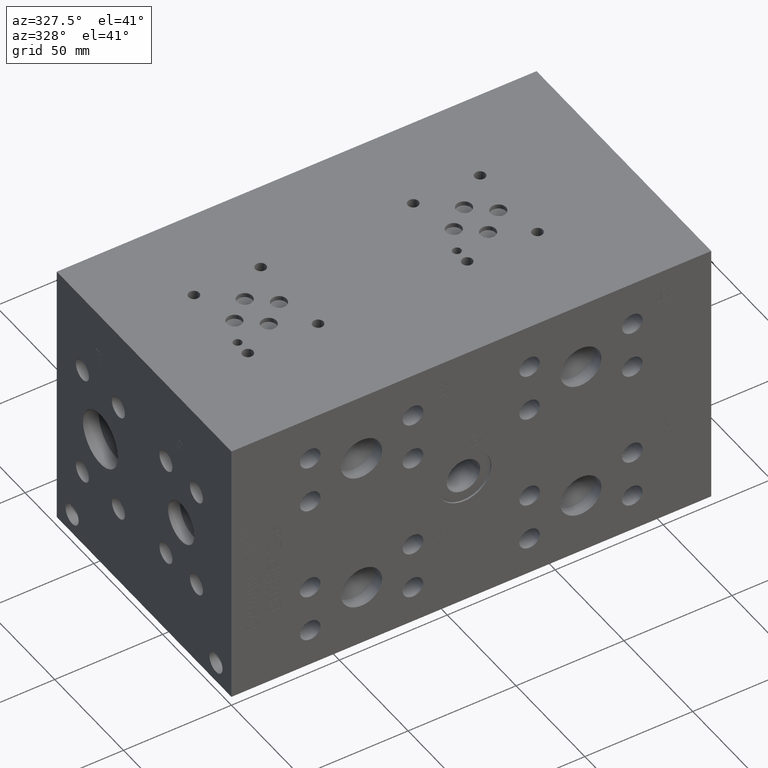
[diagram: clean part render]
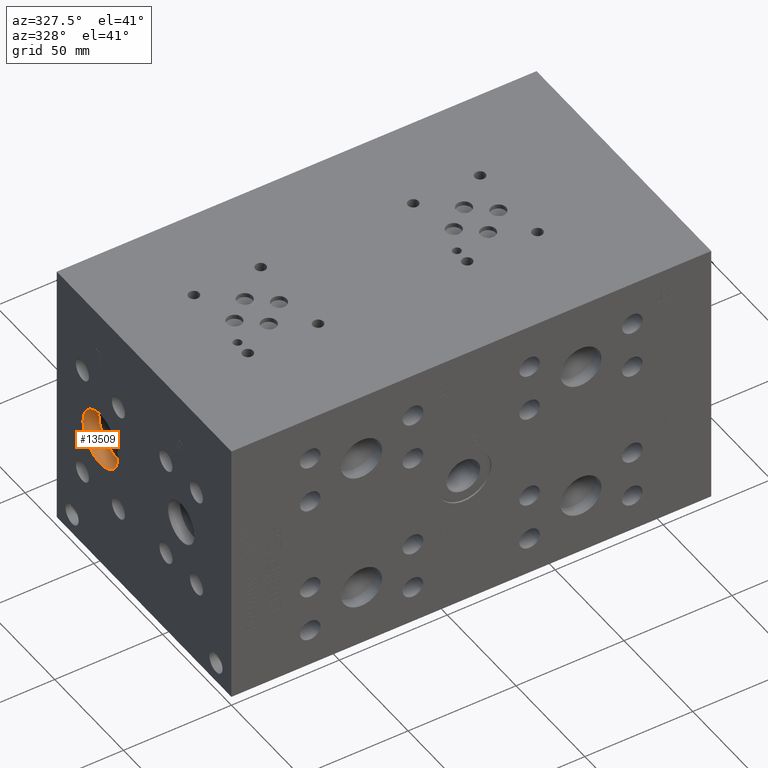
[diagram: same view with one face highlighted and labeled with its STEP entity id]
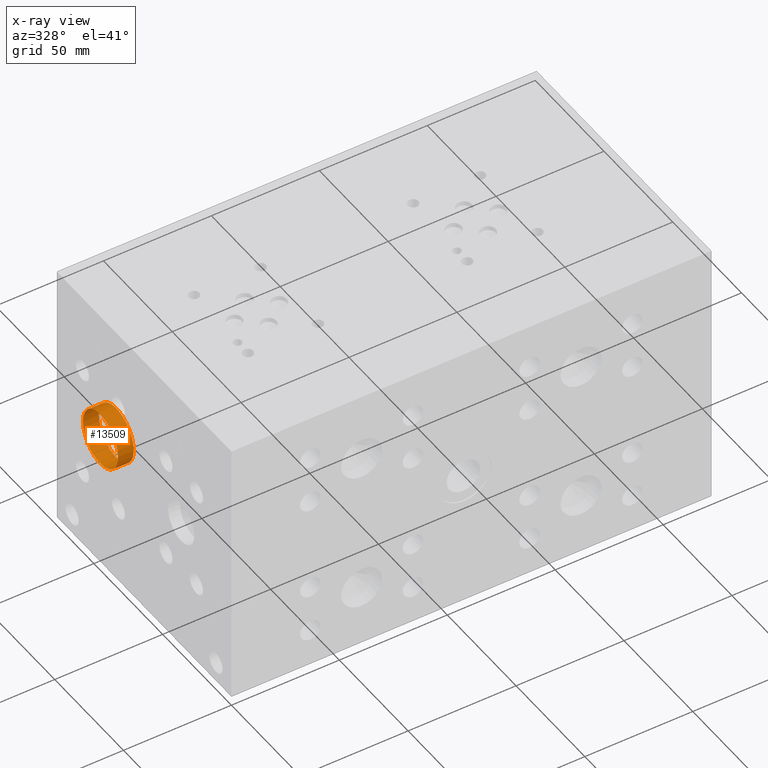
[diagram: x-ray of the same camera — body ghosted, the highlighted face saturated]
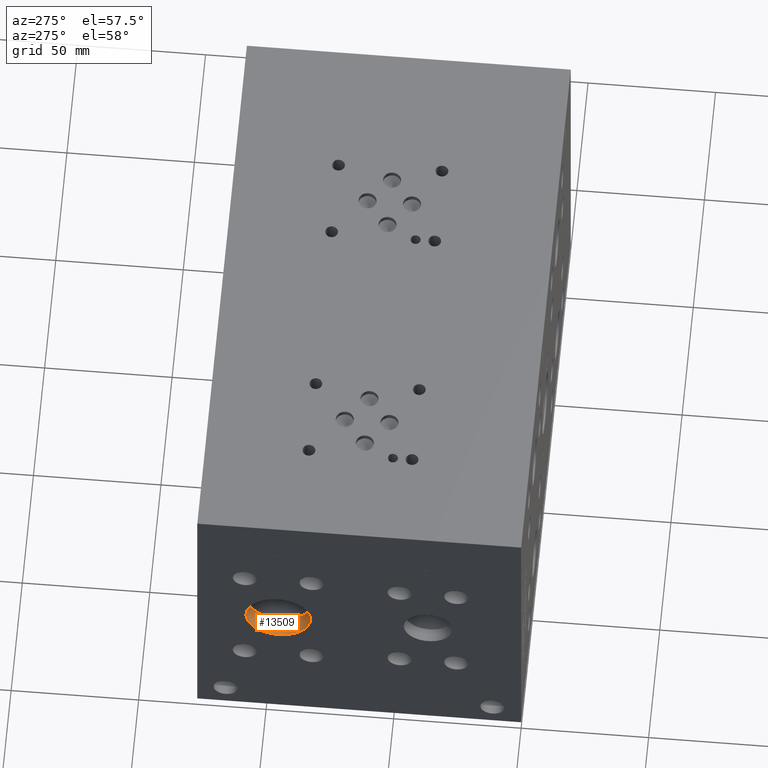
[diagram: same view with one face highlighted and labeled with its STEP entity id]
A machine part, auxiliary view. The second image highlights one B-rep face of the part: STEP entity #13509.
The next image is the same camera in x-ray: the body ghosted, the highlighted face saturated — about 0% of this face is hidden behind the body in this view.
A second angle (auxiliary view) of the same face is appended — the face is thin or edge-on in the first view.
In plain terms, the highlighted cylindrical surface (bore or boss wall) has radius 12.7 mm, axis along (-1, 0, 0).
Its self-contained STEP definition (entity closure, byte-faithful):
#23=CYLINDRICAL_SURFACE('',#14209,12.7);
#275=CIRCLE('',#14087,12.7);
#276=CIRCLE('',#14088,12.7);
#303=CIRCLE('',#14207,12.7);
#304=CIRCLE('',#14208,12.7);
#1651=FACE_OUTER_BOUND('',#2454,.T.);
#2454=EDGE_LOOP('',(#11144,#11145,#11146,#11147,#11148,#11149));
#3776=LINE('',#22564,#4992);
#4992=VECTOR('',#16712,12.7);
#5975=VERTEX_POINT('',#21500);
#5976=VERTEX_POINT('',#21501);
#6147=VERTEX_POINT('',#22557);
#6148=VERTEX_POINT('',#22558);
#7644=EDGE_CURVE('',#5975,#5976,#275,.T.);
#7645=EDGE_CURVE('',#5976,#5975,#276,.T.);
#7927=EDGE_CURVE('',#6147,#6148,#303,.T.);
#7929=EDGE_CURVE('',#6148,#6147,#304,.T.);
#7930=EDGE_CURVE('',#5976,#6148,#3776,.T.);
#11144=ORIENTED_EDGE('',*,*,#7644,.F.);
#11145=ORIENTED_EDGE('',*,*,#7645,.F.);
#11146=ORIENTED_EDGE('',*,*,#7930,.T.);
#11147=ORIENTED_EDGE('',*,*,#7927,.F.);
#11148=ORIENTED_EDGE('',*,*,#7929,.F.);
#11149=ORIENTED_EDGE('',*,*,#7930,.F.);
#13509=ADVANCED_FACE('',(#1651),#23,.F.);
#14087=AXIS2_PLACEMENT_3D('',#21502,#16268,#16269);
#14088=AXIS2_PLACEMENT_3D('',#21503,#16270,#16271);
#14207=AXIS2_PLACEMENT_3D('',#22559,#16705,#16706);
#14208=AXIS2_PLACEMENT_3D('',#22562,#16708,#16709);
#14209=AXIS2_PLACEMENT_3D('',#22563,#16710,#16711);
#16268=DIRECTION('center_axis',(1.,0.,0.));
#16269=DIRECTION('ref_axis',(0.,1.,0.));
#16270=DIRECTION('center_axis',(1.,0.,0.));
#16271=DIRECTION('ref_axis',(0.,1.,0.));
#16705=DIRECTION('center_axis',(-1.,0.,0.));
#16706=DIRECTION('ref_axis',(0.,1.,0.));
#16708=DIRECTION('center_axis',(-1.,0.,0.));
#16709=DIRECTION('ref_axis',(0.,1.,0.));
#16710=DIRECTION('center_axis',(-1.,0.,0.));
#16711=DIRECTION('ref_axis',(0.,1.,0.));
#16712=DIRECTION('',(1.,0.,0.));
#21500=CARTESIAN_POINT('',(0.,107.95,63.5));
#21501=CARTESIAN_POINT('',(0.,82.55,63.5));
#21502=CARTESIAN_POINT('Origin',(0.,95.25,63.5));
#21503=CARTESIAN_POINT('Origin',(0.,95.25,63.5));
#22557=CARTESIAN_POINT('',(7.33235,107.95,63.5));
#22558=CARTESIAN_POINT('',(7.33235,82.55,63.5));
#22559=CARTESIAN_POINT('Origin',(7.33235,95.25,63.5));
#22562=CARTESIAN_POINT('Origin',(7.33235,95.25,63.5));
#22563=CARTESIAN_POINT('Origin',(3.666175,95.25,63.5));
#22564=CARTESIAN_POINT('',(3.666175,82.55,63.5));